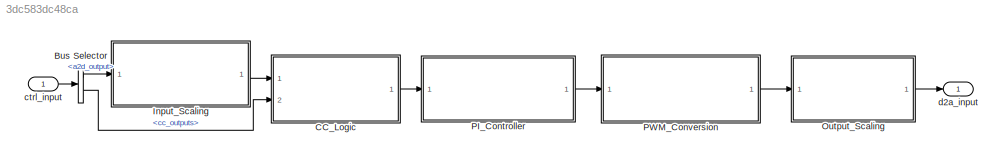
MODEL slx_3dc583dc48ca
KIND model
CONFIG AbsTol = auto
CONFIG EnableMultiTasking = on
CONFIG FixedStep = Ts
CONFIG MaxStep = auto
CONFIG MinStep = auto
CONFIG RelTol = 1e-3
CONFIG SampleTimeConstraint = Unconstrained
CONFIG SolverName = VariableStepDiscrete
CONFIG StartTime = 0.0
CONFIG StopTime = 10.0
BLOCK [BusSelector] Bus Selector
  OutputSignals = a2d_output,cc_outputs
  Ports = [1, 2]
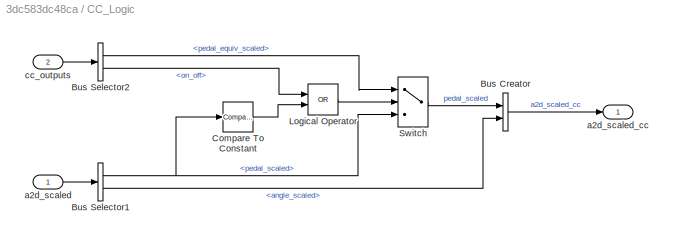
BLOCK [SubSystem] CC_Logic
  Ports = [2, 1]
  RequestExecContextInheritance = off
  TreatAsAtomicUnit = on
BLOCK [BusCreator] CC_Logic/Bus Creator
  DisplayOption = bar
  InheritFromInputs = on
  Inputs = 2
  Ports = [2, 1]
BLOCK [BusSelector] CC_Logic/Bus Selector1
  OutputSignals = pedal_scaled,angle_scaled
  Ports = [1, 2]
BLOCK [BusSelector] CC_Logic/Bus Selector2
  OutputSignals = pedal_equiv_scaled,on_off
  Ports = [1, 2]
BLOCK [Reference] CC_Logic/Compare To Constant  REF=simulink/Logic and Bit
Operations/Compare
To Constant
  Ports = [1, 1]
  SourceBlock = simulink/Logic and Bit\nOperations/Compare\nTo Constant
  SourceProductBaseCode = SL
  SourceType = Compare To Constant
BLOCK [Logic] CC_Logic/Logical Operator
  AllPortsSameDT = off
  Operator = OR
  OutDataTypeStr = boolean
  Ports = [2, 1]
BLOCK [Switch] CC_Logic/Switch
  AttributesFormatString = Criteria for passing\nsignal 1:  %<Criteria>
  Criteria = u2 ~= 0
  InputSameDT = off
  SaturateOnIntegerOverflow = off
BLOCK [Inport] CC_Logic/a2d_scaled
  OutDataTypeStr = Bus: a2d_scaled_bus
  SampleTime = Ts
BLOCK [Outport] CC_Logic/a2d_scaled_cc
  OutDataTypeStr = Bus: a2d_scaled_bus
  SampleTime = [0.01,0]
  VectorParamsAs1DForOutWhenUnconnected = off
BLOCK [Inport] CC_Logic/cc_outputs
  OutDataTypeStr = Bus: cc_outputs_bus
  Port = 2
  SampleTime = Ts
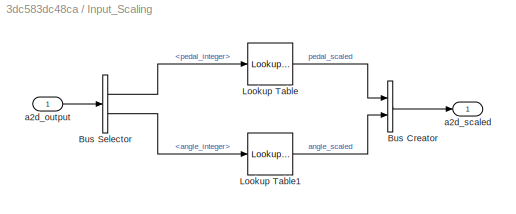
BLOCK [SubSystem] Input_Scaling
  Ports = [1, 1]
  RequestExecContextInheritance = off
  TreatAsAtomicUnit = on
BLOCK [BusCreator] Input_Scaling/Bus Creator
  DisplayOption = bar
  InheritFromInputs = on
  Inputs = 2
  OutDataTypeStr = Bus: a2d_scaled_bus
  Ports = [2, 1]
BLOCK [BusSelector] Input_Scaling/Bus Selector
  OutputSignals = pedal_integer,angle_integer
  Ports = [1, 2]
BLOCK [Lookup_n-D] Input_Scaling/Lookup Table
  AttributesFormatString = Output data type: %<OutDataTypeStr>
  BreakpointsForDimension1 = uint_range_10bit
  ExtrapMethod = Clip
  InputPortMap = u0
  NumberOfTableDimensions = 1
  OutDataTypeStr = double
  Ports = [1, 1]
  Table = normalized_range
BLOCK [Lookup_n-D] Input_Scaling/Lookup Table1
  AttributesFormatString = Output data type: %<OutDataTypeStr>
  BreakpointsForDimension1 = uint_range_10bit
  ExtrapMethod = Clip
  InputPortMap = u0
  NumberOfTableDimensions = 1
  OutDataTypeStr = double
  Ports = [1, 1]
  Table = normalized_range
BLOCK [Inport] Input_Scaling/a2d_output
  OutDataTypeStr = Bus: a2d_output_bus
  PortDimensions = 1
  SampleTime = Ts
BLOCK [Outport] Input_Scaling/a2d_scaled
  OutDataTypeStr = Bus: a2d_scaled_bus
  SampleTime = Ts
  VectorParamsAs1DForOutWhenUnconnected = off
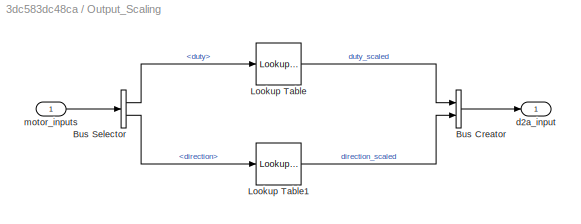
BLOCK [SubSystem] Output_Scaling
  Ports = [1, 1]
  RequestExecContextInheritance = off
  TreatAsAtomicUnit = on
BLOCK [BusCreator] Output_Scaling/Bus Creator
  DisplayOption = bar
  InheritFromInputs = on
  Inputs = 2
  OutDataTypeStr = Bus: d2a_input_bus
  Ports = [2, 1]
BLOCK [BusSelector] Output_Scaling/Bus Selector
  OutputSignals = duty,direction
  Ports = [1, 2]
BLOCK [Lookup_n-D] Output_Scaling/Lookup Table
  AttributesFormatString = Output data type: %<OutDataTypeStr>
  BreakpointsForDimension1 = duty_range
  ExtrapMethod = Clip
  InputPortMap = u0
  NumberOfTableDimensions = 1
  OutDataTypeStr = uint16
  Ports = [1, 1]
  Table = uint_range_10bit
BLOCK [Lookup_n-D] Output_Scaling/Lookup Table1
  AttributesFormatString = Output data type: %<OutDataTypeStr>
  BreakpointsForDimension1 = direction_range
  ExtrapMethod = Clip
  InputPortMap = u0
  NumberOfTableDimensions = 1
  OutDataTypeStr = uint16
  Ports = [1, 1]
  Table = digital_range
BLOCK [Outport] Output_Scaling/d2a_input
  OutDataTypeStr = Bus: d2a_input_bus
  SampleTime = Ts
  VectorParamsAs1DForOutWhenUnconnected = off
BLOCK [Inport] Output_Scaling/motor_inputs
  OutDataTypeStr = Bus: motor_inputs_bus
  PortDimensions = 1
  SampleTime = Ts
BLOCK [ModelReference] PI_Controller
  ModelNameDialog = piCtrl
  ModelReferenceVersion = 1.184
  Ports = [1, 1]
BLOCK [ModelReference] PWM_Conversion
  ModelNameDialog = pwmCnv
  ModelReferenceVersion = 1.185
  Ports = [1, 1]
BLOCK [Inport] ctrl_input
  OutDataTypeStr = Bus: ctrl_input_bus
  PortDimensions = 1
  SampleTime = Ts
BLOCK [Outport] d2a_input
  OutDataTypeStr = Bus: d2a_input_bus
  SampleTime = Ts
  VectorParamsAs1DForOutWhenUnconnected = off
LINE Bus Selector:1 -> Input_Scaling:1
LINE Bus Selector:2 -> CC_Logic:2
LINE CC_Logic/Bus Creator:1 -> CC_Logic/a2d_scaled_cc:1
NET CC_Logic/Bus Selector1:1 -> CC_Logic/Compare To Constant:1, CC_Logic/Switch:3
LINE CC_Logic/Bus Selector1:2 -> CC_Logic/Bus Creator:2
LINE CC_Logic/Bus Selector2:1 -> CC_Logic/Switch:1
LINE CC_Logic/Bus Selector2:2 -> CC_Logic/Logical Operator:1
LINE CC_Logic/Compare To Constant:1 -> CC_Logic/Logical Operator:2
LINE CC_Logic/Logical Operator:1 -> CC_Logic/Switch:2
LINE CC_Logic/Switch:1 -> CC_Logic/Bus Creator:1
LINE CC_Logic/a2d_scaled:1 -> CC_Logic/Bus Selector1:1
LINE CC_Logic/cc_outputs:1 -> CC_Logic/Bus Selector2:1
LINE CC_Logic:1 -> PI_Controller:1
LINE Input_Scaling/Bus Creator:1 -> Input_Scaling/a2d_scaled:1
LINE Input_Scaling/Bus Selector:1 -> Input_Scaling/Lookup Table:1
LINE Input_Scaling/Bus Selector:2 -> Input_Scaling/Lookup Table1:1
LINE Input_Scaling/Lookup Table1:1 -> Input_Scaling/Bus Creator:2
LINE Input_Scaling/Lookup Table:1 -> Input_Scaling/Bus Creator:1
LINE Input_Scaling/a2d_output:1 -> Input_Scaling/Bus Selector:1
LINE Input_Scaling:1 -> CC_Logic:1
LINE Output_Scaling/Bus Creator:1 -> Output_Scaling/d2a_input:1
LINE Output_Scaling/Bus Selector:1 -> Output_Scaling/Lookup Table:1
LINE Output_Scaling/Bus Selector:2 -> Output_Scaling/Lookup Table1:1
LINE Output_Scaling/Lookup Table1:1 -> Output_Scaling/Bus Creator:2
LINE Output_Scaling/Lookup Table:1 -> Output_Scaling/Bus Creator:1
LINE Output_Scaling/motor_inputs:1 -> Output_Scaling/Bus Selector:1
LINE Output_Scaling:1 -> d2a_input:1
LINE PI_Controller:1 -> PWM_Conversion:1
LINE PWM_Conversion:1 -> Output_Scaling:1
LINE ctrl_input:1 -> Bus Selector:1
note: NET lines group one-source signal fan-out (src -> all destinations, sorted); 1:1 wires keep LINE
